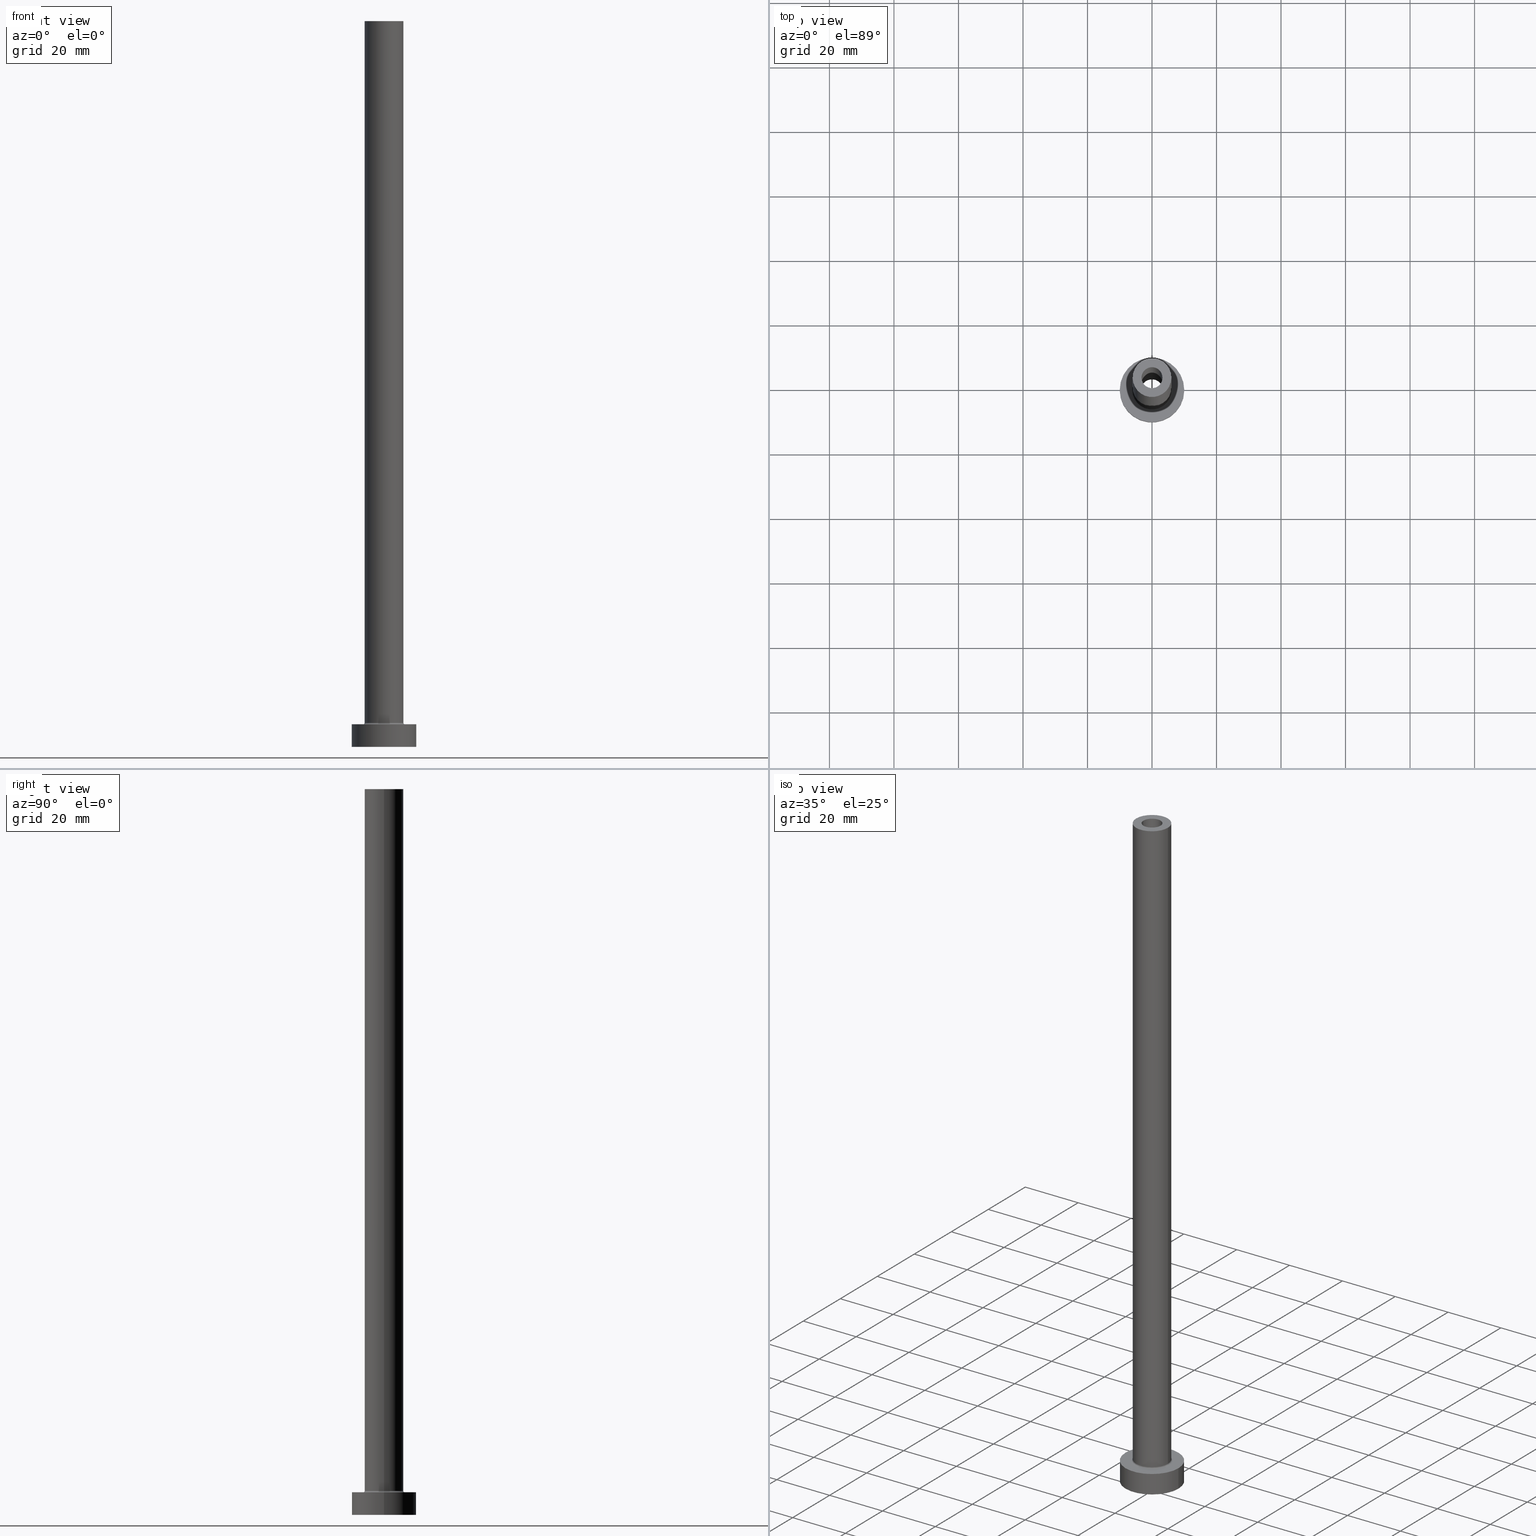
[diagram: canonical four-view strip — front | top / right | iso, engineering-drawing reading convention]
A machine part, canonical four-view strip (front | top / right | iso — engineering-drawing reading convention). The complete STEP part file that produces these views, byte-faithful:
ISO-10303-21;
HEADER;
FILE_DESCRIPTION (( 'STEP AP203' ),
    '1' );
FILE_NAME ('264a.STEP',
    '2023-02-13T13:31:31',
    ( '' ),
    ( '' ),
    'SwSTEP 2.0',
    'SolidWorks 2019',
    '' );
FILE_SCHEMA (( 'CONFIG_CONTROL_DESIGN' ));
ENDSEC;

DATA;
#1 = EDGE_CURVE ( 'NONE', #319, #363, #390, .T. ) ;
#2 =( NAMED_UNIT ( * ) SI_UNIT ( $, .STERADIAN. ) SOLID_ANGLE_UNIT ( ) );
#3 = CALENDAR_DATE ( 2023, 13, 2 ) ;
#4 = CIRCLE ( 'NONE', #278, 3.399999999999999911 ) ;
#5 = CC_DESIGN_APPROVAL ( #146, ( #234 ) ) ;
#6 = CC_DESIGN_PERSON_AND_ORGANIZATION_ASSIGNMENT ( #111, #214, ( #53 ) ) ;
#7 = EDGE_CURVE ( 'NONE', #319, #382, #361, .T. ) ;
#8 = PERSON_AND_ORGANIZATION_ROLE ( 'creator' ) ;
#9 = EDGE_LOOP ( 'NONE', ( #283, #49, #178, #432 ) ) ;
#10 = EDGE_CURVE ( 'NONE', #153, #221, #263, .T. ) ;
#11 = ORIENTED_EDGE ( 'NONE', *, *, #297, .F. ) ;
#12 = DIRECTION ( 'NONE',  ( 0.000000000000000000, 0.000000000000000000, -1.000000000000000000 ) ) ;
#13 = EDGE_LOOP ( 'NONE', ( #429, #185, #48, #92 ) ) ;
#14 = APPROVAL_PERSON_ORGANIZATION ( #251, #402, #42 ) ;
#15 = ORIENTED_EDGE ( 'NONE', *, *, #82, .T. ) ;
#16 = FACE_OUTER_BOUND ( 'NONE', #85, .T. ) ;
#17 = ADVANCED_FACE ( 'NONE', ( #405, #337 ), #28, .T. ) ;
#18 = CYLINDRICAL_SURFACE ( 'NONE', #355, 6.000000000000000888 ) ;
#19 = ORIENTED_EDGE ( 'NONE', *, *, #23, .F. ) ;
#20 = FACE_OUTER_BOUND ( 'NONE', #455, .T. ) ;
#21 = CARTESIAN_POINT ( 'NONE',  ( 0.000000000000000000, 0.000000000000000000, 225.0000000000000000 ) ) ;
#22 = EDGE_LOOP ( 'NONE', ( #244, #396 ) ) ;
#23 = EDGE_CURVE ( 'NONE', #328, #188, #286, .T. ) ;
#24 = DIRECTION ( 'NONE',  ( 1.000000000000000000, 0.000000000000000000, 0.000000000000000000 ) ) ;
#25 = PRODUCT_RELATED_PRODUCT_CATEGORY ( 'detail', '', ( #368 ) ) ;
#26 = FACE_OUTER_BOUND ( 'NONE', #13, .T. ) ;
#27 = CARTESIAN_POINT ( 'NONE',  ( 0.000000000000000000, 0.000000000000000000, 225.0000000000000000 ) ) ;
#28 = PLANE ( 'NONE',  #370 ) ;
#29 = AXIS2_PLACEMENT_3D ( 'NONE', #338, #102, #70 ) ;
#30 = CC_DESIGN_APPROVAL ( #136, ( #53 ) ) ;
#31 = CARTESIAN_POINT ( 'NONE',  ( -6.000000000000000888, 0.000000000000000000, 225.0000000000000000 ) ) ;
#32 = DIRECTION ( 'NONE',  ( 0.000000000000000000, 0.000000000000000000, 1.000000000000000000 ) ) ;
#33 = DIRECTION ( 'NONE',  ( -0.000000000000000000, -0.000000000000000000, -1.000000000000000000 ) ) ;
#34 = CARTESIAN_POINT ( 'NONE',  ( 0.000000000000000000, 0.000000000000000000, 7.500000000000007105 ) ) ;
#35 = DIRECTION ( 'NONE',  ( -0.000000000000000000, -0.000000000000000000, -1.000000000000000000 ) ) ;
#36 = CIRCLE ( 'NONE', #318, 6.500000000000000888 ) ;
#37 = DIRECTION ( 'NONE',  ( -0.000000000000000000, -0.000000000000000000, -1.000000000000000000 ) ) ;
#38 = APPROVAL_ROLE ( '' ) ;
#39 = DIRECTION ( 'NONE',  ( -0.000000000000000000, -0.000000000000000000, -1.000000000000000000 ) ) ;
#40 = APPROVAL_DATE_TIME ( #187, #402 ) ;
#41 = ADVANCED_FACE ( 'NONE', ( #26 ), #350, .T. ) ;
#42 = APPROVAL_ROLE ( '' ) ;
#43 = AXIS2_PLACEMENT_3D ( 'NONE', #435, #196, #160 ) ;
#44 = ORIENTED_EDGE ( 'NONE', *, *, #375, .F. ) ;
#45 = EDGE_CURVE ( 'NONE', #83, #90, #142, .T. ) ;
#46 = ORIENTED_EDGE ( 'NONE', *, *, #375, .T. ) ;
#47 = PERSON_AND_ORGANIZATION ( #446, #303 ) ;
#48 = ORIENTED_EDGE ( 'NONE', *, *, #226, .T. ) ;
#49 = ORIENTED_EDGE ( 'NONE', *, *, #297, .T. ) ;
#50 = ORIENTED_EDGE ( 'NONE', *, *, #10, .F. ) ;
#51 = VERTEX_POINT ( 'NONE', #213 ) ;
#52 = TOROIDAL_SURFACE ( 'NONE', #207, 6.500000000000000888, 0.5000000000000000000 ) ;
#53 = SECURITY_CLASSIFICATION ( '', '', #250 ) ;
#54 = ORIENTED_EDGE ( 'NONE', *, *, #365, .F. ) ;
#55 = CARTESIAN_POINT ( 'NONE',  ( 10.00000000000000000, 1.224646799147353256E-15, 0.000000000000000000 ) ) ;
#56 = EDGE_LOOP ( 'NONE', ( #293, #313 ) ) ;
#57 = CYLINDRICAL_SURFACE ( 'NONE', #94, 3.399999999999999911 ) ;
#58 = CARTESIAN_POINT ( 'NONE',  ( 0.000000000000000000, 0.000000000000000000, 189.6166522241370274 ) ) ;
#59 = AXIS2_PLACEMENT_3D ( 'NONE', #34, #272, #351 ) ;
#60 = CIRCLE ( 'NONE', #308, 6.500000000000000888 ) ;
#61 = ADVANCED_FACE ( 'NONE', ( #395 ), #403, .F. ) ;
#62 = ORIENTED_EDGE ( 'NONE', *, *, #349, .T. ) ;
#63 = DIRECTION ( 'NONE',  ( 1.000000000000000000, 0.000000000000000000, 0.000000000000000000 ) ) ;
#64 = DIRECTION ( 'NONE',  ( 0.000000000000000000, 0.000000000000000000, 1.000000000000000000 ) ) ;
#65 = CYLINDRICAL_SURFACE ( 'NONE', #75, 10.00000000000000000 ) ;
#66 = CARTESIAN_POINT ( 'NONE',  ( 3.399999999999999911, 4.163799117101000559E-16, 189.6166522241370274 ) ) ;
#67 = ORIENTED_EDGE ( 'NONE', *, *, #82, .F. ) ;
#68 = DIRECTION ( 'NONE',  ( -0.000000000000000000, -0.000000000000000000, -1.000000000000000000 ) ) ;
#69 = AXIS2_PLACEMENT_3D ( 'NONE', #459, #386, #107 ) ;
#70 = DIRECTION ( 'NONE',  ( 1.000000000000000000, 0.000000000000000000, 0.000000000000000000 ) ) ;
#71 = LINE ( 'NONE', #31, #441 ) ;
#72 = VERTEX_POINT ( 'NONE', #86 ) ;
#73 = ADVANCED_FACE ( 'NONE', ( #434 ), #18, .T. ) ;
#74 = ADVANCED_BREP_SHAPE_REPRESENTATION ( '264a', ( #129, #228 ), #422 ) ;
#75 = AXIS2_PLACEMENT_3D ( 'NONE', #237, #135, #198 ) ;
#76 = ADVANCED_FACE ( 'NONE', ( #197, #128 ), #121, .F. ) ;
#77 = FACE_OUTER_BOUND ( 'NONE', #165, .T. ) ;
#78 = APPLICATION_PROTOCOL_DEFINITION ( 'international standard', 'config_control_design', 1994, #398 ) ;
#79 =( NAMED_UNIT ( * ) PLANE_ANGLE_UNIT ( ) SI_UNIT ( $, .RADIAN. ) );
#80 = CALENDAR_DATE ( 2023, 13, 2 ) ;
#81 = COORDINATED_UNIVERSAL_TIME_OFFSET ( 1, 0, .AHEAD. ) ;
#82 = EDGE_CURVE ( 'NONE', #90, #176, #417, .T. ) ;
#83 = VERTEX_POINT ( 'NONE', #190 ) ;
#84 = CARTESIAN_POINT ( 'NONE',  ( 0.000000000000000000, 0.000000000000000000, 0.000000000000000000 ) ) ;
#85 = EDGE_LOOP ( 'NONE', ( #307, #156, #450, #271 ) ) ;
#86 = CARTESIAN_POINT ( 'NONE',  ( -3.250000000000000444, 0.000000000000000000, 225.0000000000000000 ) ) ;
#87 = CARTESIAN_POINT ( 'NONE',  ( -3.399999999999999911, 0.000000000000000000, 189.6166522241370274 ) ) ;
#88 = CIRCLE ( 'NONE', #431, 3.399999999999999911 ) ;
#89 = DIRECTION ( 'NONE',  ( 0.000000000000000000, 0.000000000000000000, -1.000000000000000000 ) ) ;
#90 = VERTEX_POINT ( 'NONE', #404 ) ;
#91 = DIRECTION ( 'NONE',  ( 0.000000000000000000, 0.000000000000000000, 1.000000000000000000 ) ) ;
#92 = ORIENTED_EDGE ( 'NONE', *, *, #45, .F. ) ;
#93 = DIRECTION ( 'NONE',  ( 1.000000000000000000, 0.000000000000000000, -0.000000000000000000 ) ) ;
#94 = AXIS2_PLACEMENT_3D ( 'NONE', #259, #89, #260 ) ;
#95 = CARTESIAN_POINT ( 'NONE',  ( 6.500000000000000888, 0.000000000000000000, 7.500000000000007105 ) ) ;
#96 = EDGE_CURVE ( 'NONE', #120, #51, #233, .T. ) ;
#97 = CARTESIAN_POINT ( 'NONE',  ( 0.000000000000000000, 0.000000000000000000, 0.000000000000000000 ) ) ;
#98 = DIRECTION ( 'NONE',  ( -1.000000000000000000, 0.000000000000000000, 0.000000000000000000 ) ) ;
#99 = AXIS2_PLACEMENT_3D ( 'NONE', #245, #200, #377 ) ;
#100 = CARTESIAN_POINT ( 'NONE',  ( -6.000000000000000888, 0.000000000000000000, 7.500000000000007105 ) ) ;
#101 = ORIENTED_EDGE ( 'NONE', *, *, #191, .T. ) ;
#102 = DIRECTION ( 'NONE',  ( 0.000000000000000000, 0.000000000000000000, 1.000000000000000000 ) ) ;
#103 = DIRECTION ( 'NONE',  ( -1.000000000000000000, 0.000000000000000000, 0.000000000000000000 ) ) ;
#104 = CYLINDRICAL_SURFACE ( 'NONE', #399, 6.000000000000000888 ) ;
#105 = PERSON_AND_ORGANIZATION_ROLE ( 'design_owner' ) ;
#106 = AXIS2_PLACEMENT_3D ( 'NONE', #364, #288, #194 ) ;
#107 = DIRECTION ( 'NONE',  ( 1.000000000000000000, 0.000000000000000000, -0.000000000000000000 ) ) ;
#108 = EDGE_CURVE ( 'NONE', #72, #425, #436, .T. ) ;
#109 = DIRECTION ( 'NONE',  ( 1.000000000000000000, 0.000000000000000000, -0.000000000000000000 ) ) ;
#110 = LOCAL_TIME ( 14, 31, 31.00000000000000000, #81 ) ;
#111 = PERSON_AND_ORGANIZATION ( #446, #303 ) ;
#112 = EDGE_LOOP ( 'NONE', ( #449, #230 ) ) ;
#113 = MECHANICAL_CONTEXT ( 'NONE', #269, 'mechanical' ) ;
#114 = PERSON_AND_ORGANIZATION ( #446, #303 ) ;
#115 = AXIS2_PLACEMENT_3D ( 'NONE', #157, #401, #325 ) ;
#116 = EDGE_LOOP ( 'NONE', ( #195, #101 ) ) ;
#117 = CARTESIAN_POINT ( 'NONE',  ( 6.500000000000000888, 0.000000000000000000, 7.000000000000002665 ) ) ;
#118 = ORIENTED_EDGE ( 'NONE', *, *, #23, .T. ) ;
#119 = EDGE_LOOP ( 'NONE', ( #357, #193 ) ) ;
#120 = VERTEX_POINT ( 'NONE', #326 ) ;
#121 = PLANE ( 'NONE',  #43 ) ;
#122 = EDGE_CURVE ( 'NONE', #410, #176, #227, .T. ) ;
#123 = CARTESIAN_POINT ( 'NONE',  ( 3.399999999999999911, 4.163799117101000559E-16, 180.0000000000000000 ) ) ;
#124 = TOROIDAL_SURFACE ( 'NONE', #99, 6.500000000000000888, 0.5000000000000000000 ) ;
#125 = DIRECTION ( 'NONE',  ( -0.000000000000000000, -0.000000000000000000, -1.000000000000000000 ) ) ;
#126 = DIRECTION ( 'NONE',  ( 0.000000000000000000, 0.000000000000000000, -1.000000000000000000 ) ) ;
#127 = EDGE_LOOP ( 'NONE', ( #461, #285, #281, #458 ) ) ;
#128 = FACE_OUTER_BOUND ( 'NONE', #291, .T. ) ;
#129 = MANIFOLD_SOLID_BREP ( 'Odebrat vysunut�m4', #137 ) ;
#130 = CARTESIAN_POINT ( 'NONE',  ( 0.000000000000000000, 0.000000000000000000, 7.500000000000007105 ) ) ;
#131 = VECTOR ( 'NONE', #35, 1000.000000000000000 ) ;
#132 = APPROVAL_PERSON_ORGANIZATION ( #114, #146, #38 ) ;
#133 = CARTESIAN_POINT ( 'NONE',  ( 0.000000000000000000, 0.000000000000000000, 225.0000000000000000 ) ) ;
#134 = FACE_OUTER_BOUND ( 'NONE', #127, .T. ) ;
#135 = DIRECTION ( 'NONE',  ( -0.000000000000000000, -0.000000000000000000, -1.000000000000000000 ) ) ;
#136 = APPROVAL ( #387, 'NEUR�EN�' ) ;
#137 = CLOSED_SHELL ( 'NONE', ( #353, #159, #235, #73, #41, #279, #17, #76, #430, #171, #173, #61, #414, #393 ) ) ;
#138 = AXIS2_PLACEMENT_3D ( 'NONE', #300, #341, #381 ) ;
#139 = DIRECTION ( 'NONE',  ( 1.000000000000000000, 0.000000000000000000, 0.000000000000000000 ) ) ;
#140 = ORIENTED_EDGE ( 'NONE', *, *, #299, .F. ) ;
#141 = FACE_OUTER_BOUND ( 'NONE', #119, .T. ) ;
#142 = LINE ( 'NONE', #242, #131 ) ;
#143 = CARTESIAN_POINT ( 'NONE',  ( 0.000000000000000000, 0.000000000000000000, 225.0000000000000000 ) ) ;
#144 = APPROVAL_STATUS ( 'not_yet_approved' ) ;
#145 = ORIENTED_EDGE ( 'NONE', *, *, #226, .F. ) ;
#146 = APPROVAL ( #144, 'NEUR�EN�' ) ;
#147 = AXIS2_PLACEMENT_3D ( 'NONE', #130, #409, #166 ) ;
#148 = LINE ( 'NONE', #454, #225 ) ;
#149 = APPROVAL_PERSON_ORGANIZATION ( #317, #136, #184 ) ;
#150 = PERSON_AND_ORGANIZATION ( #446, #303 ) ;
#151 = DATE_AND_TIME ( #273, #110 ) ;
#152 = PERSON_AND_ORGANIZATION ( #446, #303 ) ;
#153 = VERTEX_POINT ( 'NONE', #123 ) ;
#154 = CARTESIAN_POINT ( 'NONE',  ( -6.000000000000000888, 0.000000000000000000, 225.0000000000000000 ) ) ;
#155 = CIRCLE ( 'NONE', #147, 6.000000000000000888 ) ;
#156 = ORIENTED_EDGE ( 'NONE', *, *, #10, .T. ) ;
#157 = CARTESIAN_POINT ( 'NONE',  ( 0.000000000000000000, 0.000000000000000000, 225.0000000000000000 ) ) ;
#158 = VERTEX_POINT ( 'NONE', #366 ) ;
#159 = ADVANCED_FACE ( 'NONE', ( #16 ), #57, .F. ) ;
#160 = DIRECTION ( 'NONE',  ( 1.000000000000000000, 0.000000000000000000, -0.000000000000000000 ) ) ;
#161 = EDGE_CURVE ( 'NONE', #72, #120, #327, .T. ) ;
#162 = PLANE ( 'NONE',  #241 ) ;
#163 = VECTOR ( 'NONE', #12, 1000.000000000000000 ) ;
#164 = FACE_OUTER_BOUND ( 'NONE', #183, .T. ) ;
#165 = EDGE_LOOP ( 'NONE', ( #392, #140, #383, #359 ) ) ;
#166 = DIRECTION ( 'NONE',  ( 1.000000000000000000, 0.000000000000000000, 0.000000000000000000 ) ) ;
#167 = DIRECTION ( 'NONE',  ( 0.000000000000000000, 0.000000000000000000, -1.000000000000000000 ) ) ;
#168 = AXIS2_PLACEMENT_3D ( 'NONE', #177, #205, #311 ) ;
#169 = CARTESIAN_POINT ( 'NONE',  ( 0.000000000000000000, 0.000000000000000000, 225.0000000000000000 ) ) ;
#170 = CC_DESIGN_DATE_AND_TIME_ASSIGNMENT ( #210, #460, ( #234 ) ) ;
#171 = ADVANCED_FACE ( 'NONE', ( #372, #20 ), #162, .T. ) ;
#172 = CARTESIAN_POINT ( 'NONE',  ( 6.000000000000000888, 7.347880794884120722E-16, 225.0000000000000000 ) ) ;
#173 = ADVANCED_FACE ( 'NONE', ( #164 ), #52, .F. ) ;
#174 = FACE_OUTER_BOUND ( 'NONE', #247, .T. ) ;
#175 = CIRCLE ( 'NONE', #189, 10.00000000000000000 ) ;
#176 = VERTEX_POINT ( 'NONE', #55 ) ;
#177 = CARTESIAN_POINT ( 'NONE',  ( 0.000000000000000000, 0.000000000000000000, 0.000000000000000000 ) ) ;
#178 = ORIENTED_EDGE ( 'NONE', *, *, #96, .F. ) ;
#179 = FACE_BOUND ( 'NONE', #116, .T. ) ;
#180 = DATE_TIME_ROLE ( 'classification_date' ) ;
#181 = AXIS2_PLACEMENT_3D ( 'NONE', #267, #416, #380 ) ;
#182 = CARTESIAN_POINT ( 'NONE',  ( 0.000000000000000000, 0.000000000000000000, 7.000000000000000000 ) ) ;
#183 = EDGE_LOOP ( 'NONE', ( #255, #44, #208, #54 ) ) ;
#184 = APPROVAL_ROLE ( '' ) ;
#185 = ORIENTED_EDGE ( 'NONE', *, *, #122, .T. ) ;
#186 = EDGE_CURVE ( 'NONE', #192, #158, #295, .T. ) ;
#187 = DATE_AND_TIME ( #218, #323 ) ;
#188 = VERTEX_POINT ( 'NONE', #154 ) ;
#189 = AXIS2_PLACEMENT_3D ( 'NONE', #332, #243, #239 ) ;
#190 = CARTESIAN_POINT ( 'NONE',  ( -10.00000000000000000, 0.000000000000000000, 7.000000000000000000 ) ) ;
#191 = EDGE_CURVE ( 'NONE', #51, #120, #371, .T. ) ;
#192 = VERTEX_POINT ( 'NONE', #433 ) ;
#193 = ORIENTED_EDGE ( 'NONE', *, *, #349, .F. ) ;
#194 = DIRECTION ( 'NONE',  ( 1.000000000000000000, 0.000000000000000000, 0.000000000000000000 ) ) ;
#195 = ORIENTED_EDGE ( 'NONE', *, *, #96, .T. ) ;
#196 = DIRECTION ( 'NONE',  ( 0.000000000000000000, 0.000000000000000000, 1.000000000000000000 ) ) ;
#197 = FACE_BOUND ( 'NONE', #112, .T. ) ;
#198 = DIRECTION ( 'NONE',  ( -1.000000000000000000, 0.000000000000000000, 0.000000000000000000 ) ) ;
#199 = CARTESIAN_POINT ( 'NONE',  ( 6.000000000000000888, 7.347880794884120722E-16, 7.500000000000007105 ) ) ;
#200 = DIRECTION ( 'NONE',  ( 0.000000000000000000, 0.000000000000000000, 1.000000000000000000 ) ) ;
#201 = AXIS2_PLACEMENT_3D ( 'NONE', #58, #292, #232 ) ;
#202 = LOCAL_TIME ( 14, 31, 31.00000000000000000, #356 ) ;
#203 = LINE ( 'NONE', #443, #385 ) ;
#204 = DIRECTION ( 'NONE',  ( 0.000000000000000000, 0.000000000000000000, -1.000000000000000000 ) ) ;
#205 = DIRECTION ( 'NONE',  ( -0.000000000000000000, -0.000000000000000000, -1.000000000000000000 ) ) ;
#206 = AXIS2_PLACEMENT_3D ( 'NONE', #95, #236, #373 ) ;
#207 = AXIS2_PLACEMENT_3D ( 'NONE', #439, #289, #63 ) ;
#208 = ORIENTED_EDGE ( 'NONE', *, *, #379, .T. ) ;
#209 = CARTESIAN_POINT ( 'NONE',  ( 3.250000000000000444, 3.980102097228898231E-16, 225.0000000000000000 ) ) ;
#210 = DATE_AND_TIME ( #80, #340 ) ;
#211 = ORIENTED_EDGE ( 'NONE', *, *, #45, .T. ) ;
#212 = DIRECTION ( 'NONE',  ( 0.000000000000000000, 0.000000000000000000, 1.000000000000000000 ) ) ;
#213 = CARTESIAN_POINT ( 'NONE',  ( 3.250000000000000444, 3.980102097228898231E-16, 180.0000000000000000 ) ) ;
#214 = PERSON_AND_ORGANIZATION_ROLE ( 'classification_officer' ) ;
#215 = APPLICATION_PROTOCOL_DEFINITION ( 'international standard', 'config_control_design', 1994, #269 ) ;
#216 = CC_DESIGN_DATE_AND_TIME_ASSIGNMENT ( #280, #180, ( #53 ) ) ;
#217 = CIRCLE ( 'NONE', #138, 3.250000000000000444 ) ;
#218 = CALENDAR_DATE ( 2023, 13, 2 ) ;
#219 = CALENDAR_DATE ( 2023, 13, 2 ) ;
#220 = VERTEX_POINT ( 'NONE', #117 ) ;
#221 = VERTEX_POINT ( 'NONE', #254 ) ;
#222 = DIRECTION ( 'NONE',  ( -0.000000000000000000, -0.000000000000000000, -1.000000000000000000 ) ) ;
#223 = AXIS2_PLACEMENT_3D ( 'NONE', #428, #324, #418 ) ;
#224 = ORIENTED_EDGE ( 'NONE', *, *, #444, .T. ) ;
#225 = VECTOR ( 'NONE', #37, 1000.000000000000000 ) ;
#226 = EDGE_CURVE ( 'NONE', #176, #90, #268, .T. ) ;
#227 = LINE ( 'NONE', #257, #329 ) ;
#228 = AXIS2_PLACEMENT_3D ( 'NONE', #84, #354, #284 ) ;
#229 = CARTESIAN_POINT ( 'NONE',  ( 0.000000000000000000, 0.000000000000000000, 225.0000000000000000 ) ) ;
#230 = ORIENTED_EDGE ( 'NONE', *, *, #262, .F. ) ;
#231 = CARTESIAN_POINT ( 'NONE',  ( 0.000000000000000000, 0.000000000000000000, 0.000000000000000000 ) ) ;
#232 = DIRECTION ( 'NONE',  ( -1.000000000000000000, 0.000000000000000000, 0.000000000000000000 ) ) ;
#233 = CIRCLE ( 'NONE', #407, 3.250000000000000444 ) ;
#234 = PRODUCT_DEFINITION ( 'NEZN�M�', '', #362, #314 ) ;
#235 = ADVANCED_FACE ( 'NONE', ( #134 ), #124, .F. ) ;
#236 = DIRECTION ( 'NONE',  ( 0.000000000000000000, -1.000000000000000000, 0.000000000000000000 ) ) ;
#237 = CARTESIAN_POINT ( 'NONE',  ( 0.000000000000000000, 0.000000000000000000, 7.000000000000000000 ) ) ;
#238 = EDGE_CURVE ( 'NONE', #425, #72, #217, .T. ) ;
#239 = DIRECTION ( 'NONE',  ( 1.000000000000000000, 0.000000000000000000, 0.000000000000000000 ) ) ;
#240 = CC_DESIGN_PERSON_AND_ORGANIZATION_ASSIGNMENT ( #150, #8, ( #362 ) ) ;
#241 = AXIS2_PLACEMENT_3D ( 'NONE', #21, #397, #93 ) ;
#242 = CARTESIAN_POINT ( 'NONE',  ( -10.00000000000000000, 0.000000000000000000, 7.000000000000000000 ) ) ;
#243 = DIRECTION ( 'NONE',  ( 0.000000000000000000, 0.000000000000000000, 1.000000000000000000 ) ) ;
#244 = ORIENTED_EDGE ( 'NONE', *, *, #335, .T. ) ;
#245 = CARTESIAN_POINT ( 'NONE',  ( 0.000000000000000000, 0.000000000000000000, 7.500000000000007105 ) ) ;
#246 =( LENGTH_UNIT ( ) NAMED_UNIT ( * ) SI_UNIT ( .MILLI., .METRE. ) );
#247 = EDGE_LOOP ( 'NONE', ( #274, #256, #211, #15 ) ) ;
#248 = AXIS2_PLACEMENT_3D ( 'NONE', #27, #167, #411 ) ;
#249 = LOCAL_TIME ( 14, 31, 31.00000000000000000, #384 ) ;
#250 = SECURITY_CLASSIFICATION_LEVEL ( 'unclassified' ) ;
#251 = PERSON_AND_ORGANIZATION ( #446, #303 ) ;
#252 = CIRCLE ( 'NONE', #181, 10.00000000000000000 ) ;
#253 = EDGE_LOOP ( 'NONE', ( #11, #423, #258, #347 ) ) ;
#254 = CARTESIAN_POINT ( 'NONE',  ( 3.399999999999999911, 4.163799117101000559E-16, 0.000000000000000000 ) ) ;
#255 = ORIENTED_EDGE ( 'NONE', *, *, #1, .F. ) ;
#256 = ORIENTED_EDGE ( 'NONE', *, *, #336, .F. ) ;
#257 = CARTESIAN_POINT ( 'NONE',  ( 10.00000000000000000, 1.224646799147353256E-15, 7.000000000000000000 ) ) ;
#258 = ORIENTED_EDGE ( 'NONE', *, *, #161, .T. ) ;
#259 = CARTESIAN_POINT ( 'NONE',  ( 0.000000000000000000, 0.000000000000000000, 189.6166522241370274 ) ) ;
#260 = DIRECTION ( 'NONE',  ( -1.000000000000000000, 0.000000000000000000, 0.000000000000000000 ) ) ;
#261 = DIRECTION ( 'NONE',  ( 0.000000000000000000, 0.000000000000000000, 1.000000000000000000 ) ) ;
#262 = EDGE_CURVE ( 'NONE', #221, #158, #391, .T. ) ;
#263 = LINE ( 'NONE', #66, #406 ) ;
#264 = DIRECTION ( 'NONE',  ( 0.000000000000000000, 0.000000000000000000, 1.000000000000000000 ) ) ;
#265 = CIRCLE ( 'NONE', #168, 3.399999999999999911 ) ;
#266 = CARTESIAN_POINT ( 'NONE',  ( 0.000000000000000000, 0.000000000000000000, 180.0000000000000000 ) ) ;
#267 = CARTESIAN_POINT ( 'NONE',  ( 0.000000000000000000, 0.000000000000000000, 7.000000000000000000 ) ) ;
#268 = CIRCLE ( 'NONE', #29, 10.00000000000000000 ) ;
#269 = APPLICATION_CONTEXT ( 'configuration controlled 3d designs of mechanical parts and assemblies' ) ;
#270 = CARTESIAN_POINT ( 'NONE',  ( 0.000000000000000000, 0.000000000000000000, 7.000000000000000000 ) ) ;
#271 = ORIENTED_EDGE ( 'NONE', *, *, #186, .F. ) ;
#272 = DIRECTION ( 'NONE',  ( 0.000000000000000000, 0.000000000000000000, 1.000000000000000000 ) ) ;
#273 = CALENDAR_DATE ( 2023, 13, 2 ) ;
#274 = ORIENTED_EDGE ( 'NONE', *, *, #122, .F. ) ;
#275 = DIRECTION ( 'NONE',  ( 1.000000000000000000, 0.000000000000000000, 0.000000000000000000 ) ) ;
#276 = APPROVAL_STATUS ( 'not_yet_approved' ) ;
#277 = AXIS2_PLACEMENT_3D ( 'NONE', #97, #374, #305 ) ;
#278 = AXIS2_PLACEMENT_3D ( 'NONE', #345, #212, #275 ) ;
#279 = ADVANCED_FACE ( 'NONE', ( #174 ), #65, .T. ) ;
#280 = DATE_AND_TIME ( #219, #202 ) ;
#281 = ORIENTED_EDGE ( 'NONE', *, *, #335, .F. ) ;
#282 = APPROVAL_DATE_TIME ( #389, #146 ) ;
#283 = ORIENTED_EDGE ( 'NONE', *, *, #108, .T. ) ;
#284 = DIRECTION ( 'NONE',  ( 1.000000000000000000, 0.000000000000000000, 0.000000000000000000 ) ) ;
#285 = ORIENTED_EDGE ( 'NONE', *, *, #1, .T. ) ;
#286 = CIRCLE ( 'NONE', #287, 6.000000000000000888 ) ;
#287 = AXIS2_PLACEMENT_3D ( 'NONE', #376, #64, #333 ) ;
#288 = DIRECTION ( 'NONE',  ( 0.000000000000000000, 0.000000000000000000, 1.000000000000000000 ) ) ;
#289 = DIRECTION ( 'NONE',  ( 0.000000000000000000, 0.000000000000000000, 1.000000000000000000 ) ) ;
#290 = ORIENTED_EDGE ( 'NONE', *, *, #299, .T. ) ;
#291 = EDGE_LOOP ( 'NONE', ( #67, #145 ) ) ;
#292 = DIRECTION ( 'NONE',  ( 0.000000000000000000, 0.000000000000000000, -1.000000000000000000 ) ) ;
#293 = ORIENTED_EDGE ( 'NONE', *, *, #108, .F. ) ;
#294 = VECTOR ( 'NONE', #298, 1000.000000000000000 ) ;
#295 = LINE ( 'NONE', #87, #163 ) ;
#296 = PRODUCT_DEFINITION_SHAPE ( 'NONE', 'NONE',  #234 ) ;
#297 = EDGE_CURVE ( 'NONE', #425, #51, #203, .T. ) ;
#298 = DIRECTION ( 'NONE',  ( 0.000000000000000000, 0.000000000000000000, -1.000000000000000000 ) ) ;
#299 = EDGE_CURVE ( 'NONE', #188, #328, #339, .T. ) ;
#300 = CARTESIAN_POINT ( 'NONE',  ( 0.000000000000000000, 0.000000000000000000, 225.0000000000000000 ) ) ;
#301 = EDGE_LOOP ( 'NONE', ( #50, #62, #453, #331 ) ) ;
#302 = DIRECTION ( 'NONE',  ( 1.000000000000000000, 0.000000000000000000, 0.000000000000000000 ) ) ;
#303 = ORGANIZATION ( 'NEUR�EN�', 'NEUR�EN�', '' ) ;
#304 = CYLINDRICAL_SURFACE ( 'NONE', #248, 3.250000000000000444 ) ;
#305 = DIRECTION ( 'NONE',  ( 1.000000000000000000, 0.000000000000000000, 0.000000000000000000 ) ) ;
#306 = DIRECTION ( 'NONE',  ( 0.000000000000000000, 0.000000000000000000, -1.000000000000000000 ) ) ;
#307 = ORIENTED_EDGE ( 'NONE', *, *, #447, .T. ) ;
#308 = AXIS2_PLACEMENT_3D ( 'NONE', #270, #68, #448 ) ;
#309 = PLANE ( 'NONE',  #69 ) ;
#310 = CC_DESIGN_PERSON_AND_ORGANIZATION_ASSIGNMENT ( #47, #105, ( #368 ) ) ;
#311 = DIRECTION ( 'NONE',  ( 1.000000000000000000, 0.000000000000000000, 0.000000000000000000 ) ) ;
#312 = PERSON_AND_ORGANIZATION_ROLE ( 'creator' ) ;
#313 = ORIENTED_EDGE ( 'NONE', *, *, #238, .F. ) ;
#314 = DESIGN_CONTEXT ( 'detailed design', #398, 'design' ) ;
#315 = EDGE_CURVE ( 'NONE', #410, #83, #252, .T. ) ;
#316 = DIRECTION ( 'NONE',  ( -1.000000000000000000, 0.000000000000000000, 0.000000000000000000 ) ) ;
#317 = PERSON_AND_ORGANIZATION ( #446, #303 ) ;
#318 = AXIS2_PLACEMENT_3D ( 'NONE', #440, #33, #139 ) ;
#319 = VERTEX_POINT ( 'NONE', #100 ) ;
#320 = SHAPE_DEFINITION_REPRESENTATION ( #296, #74 ) ;
#321 = CARTESIAN_POINT ( 'NONE',  ( 0.000000000000000000, 0.000000000000000000, 180.0000000000000000 ) ) ;
#322 = AXIS2_PLACEMENT_3D ( 'NONE', #415, #342, #103 ) ;
#323 = LOCAL_TIME ( 14, 31, 31.00000000000000000, #421 ) ;
#324 = DIRECTION ( 'NONE',  ( 1.224646799147353207E-16, 1.000000000000000000, -0.000000000000000000 ) ) ;
#325 = DIRECTION ( 'NONE',  ( 1.000000000000000000, 0.000000000000000000, 0.000000000000000000 ) ) ;
#326 = CARTESIAN_POINT ( 'NONE',  ( -3.250000000000000444, 0.000000000000000000, 180.0000000000000000 ) ) ;
#327 = LINE ( 'NONE', #330, #294 ) ;
#328 = VERTEX_POINT ( 'NONE', #172 ) ;
#329 = VECTOR ( 'NONE', #125, 1000.000000000000000 ) ;
#330 = CARTESIAN_POINT ( 'NONE',  ( -3.250000000000000444, 0.000000000000000000, 225.0000000000000000 ) ) ;
#331 = ORIENTED_EDGE ( 'NONE', *, *, #420, .T. ) ;
#332 = CARTESIAN_POINT ( 'NONE',  ( 0.000000000000000000, 0.000000000000000000, 7.000000000000000000 ) ) ;
#333 = DIRECTION ( 'NONE',  ( 1.000000000000000000, 0.000000000000000000, 0.000000000000000000 ) ) ;
#334 = FACE_OUTER_BOUND ( 'NONE', #253, .T. ) ;
#335 = EDGE_CURVE ( 'NONE', #220, #363, #60, .T. ) ;
#336 = EDGE_CURVE ( 'NONE', #83, #410, #175, .T. ) ;
#337 = FACE_OUTER_BOUND ( 'NONE', #456, .T. ) ;
#338 = CARTESIAN_POINT ( 'NONE',  ( 0.000000000000000000, 0.000000000000000000, 0.000000000000000000 ) ) ;
#339 = CIRCLE ( 'NONE', #452, 6.000000000000000888 ) ;
#340 = LOCAL_TIME ( 14, 31, 31.00000000000000000, #352 ) ;
#341 = DIRECTION ( 'NONE',  ( 0.000000000000000000, 0.000000000000000000, 1.000000000000000000 ) ) ;
#342 = DIRECTION ( 'NONE',  ( -0.000000000000000000, -0.000000000000000000, -1.000000000000000000 ) ) ;
#343 = CARTESIAN_POINT ( 'NONE',  ( -6.500000000000000888, 7.960204194457796463E-16, 7.000000000000002665 ) ) ;
#344 = EDGE_CURVE ( 'NONE', #188, #319, #71, .T. ) ;
#345 = CARTESIAN_POINT ( 'NONE',  ( 0.000000000000000000, 0.000000000000000000, 180.0000000000000000 ) ) ;
#346 = AXIS2_PLACEMENT_3D ( 'NONE', #169, #204, #98 ) ;
#347 = ORIENTED_EDGE ( 'NONE', *, *, #191, .F. ) ;
#348 = PERSON_AND_ORGANIZATION ( #446, #303 ) ;
#349 = EDGE_CURVE ( 'NONE', #153, #192, #88, .T. ) ;
#350 = CYLINDRICAL_SURFACE ( 'NONE', #322, 10.00000000000000000 ) ;
#351 = DIRECTION ( 'NONE',  ( 1.000000000000000000, 0.000000000000000000, 0.000000000000000000 ) ) ;
#352 = COORDINATED_UNIVERSAL_TIME_OFFSET ( 1, 0, .AHEAD. ) ;
#353 = ADVANCED_FACE ( 'NONE', ( #412 ), #451, .F. ) ;
#354 = DIRECTION ( 'NONE',  ( 0.000000000000000000, 0.000000000000000000, 1.000000000000000000 ) ) ;
#355 = AXIS2_PLACEMENT_3D ( 'NONE', #229, #222, #360 ) ;
#356 = COORDINATED_UNIVERSAL_TIME_OFFSET ( 1, 0, .AHEAD. ) ;
#357 = ORIENTED_EDGE ( 'NONE', *, *, #447, .F. ) ;
#358 = DIRECTION ( 'NONE',  ( 0.000000000000000000, 0.000000000000000000, 1.000000000000000000 ) ) ;
#359 = ORIENTED_EDGE ( 'NONE', *, *, #7, .T. ) ;
#360 = DIRECTION ( 'NONE',  ( -1.000000000000000000, 0.000000000000000000, 0.000000000000000000 ) ) ;
#361 = CIRCLE ( 'NONE', #59, 6.000000000000000888 ) ;
#362 = PRODUCT_DEFINITION_FORMATION_WITH_SPECIFIED_SOURCE ( 'LIBOVOLN�', '', #368, .NOT_KNOWN. ) ;
#363 = VERTEX_POINT ( 'NONE', #343 ) ;
#364 = CARTESIAN_POINT ( 'NONE',  ( 0.000000000000000000, 0.000000000000000000, 180.0000000000000000 ) ) ;
#365 = EDGE_CURVE ( 'NONE', #363, #220, #36, .T. ) ;
#366 = CARTESIAN_POINT ( 'NONE',  ( -3.399999999999999911, 0.000000000000000000, 0.000000000000000000 ) ) ;
#367 = ORIENTED_EDGE ( 'NONE', *, *, #344, .F. ) ;
#368 = PRODUCT ( '264a', '264a', '', ( #113 ) ) ;
#369 = DIRECTION ( 'NONE',  ( 1.000000000000000000, 0.000000000000000000, 0.000000000000000000 ) ) ;
#370 = AXIS2_PLACEMENT_3D ( 'NONE', #182, #358, #109 ) ;
#371 = CIRCLE ( 'NONE', #106, 3.250000000000000444 ) ;
#372 = FACE_BOUND ( 'NONE', #56, .T. ) ;
#373 = DIRECTION ( 'NONE',  ( 0.000000000000000000, 0.000000000000000000, -1.000000000000000000 ) ) ;
#374 = DIRECTION ( 'NONE',  ( -0.000000000000000000, -0.000000000000000000, -1.000000000000000000 ) ) ;
#375 = EDGE_CURVE ( 'NONE', #382, #319, #155, .T. ) ;
#376 = CARTESIAN_POINT ( 'NONE',  ( 0.000000000000000000, 0.000000000000000000, 225.0000000000000000 ) ) ;
#377 = DIRECTION ( 'NONE',  ( 1.000000000000000000, 0.000000000000000000, 0.000000000000000000 ) ) ;
#378 = AXIS2_PLACEMENT_3D ( 'NONE', #231, #261, #438 ) ;
#379 = EDGE_CURVE ( 'NONE', #382, #220, #408, .T. ) ;
#380 = DIRECTION ( 'NONE',  ( 1.000000000000000000, 0.000000000000000000, 0.000000000000000000 ) ) ;
#381 = DIRECTION ( 'NONE',  ( 1.000000000000000000, 0.000000000000000000, 0.000000000000000000 ) ) ;
#382 = VERTEX_POINT ( 'NONE', #199 ) ;
#383 = ORIENTED_EDGE ( 'NONE', *, *, #344, .T. ) ;
#384 = COORDINATED_UNIVERSAL_TIME_OFFSET ( 1, 0, .AHEAD. ) ;
#385 = VECTOR ( 'NONE', #306, 1000.000000000000000 ) ;
#386 = DIRECTION ( 'NONE',  ( 0.000000000000000000, 0.000000000000000000, 1.000000000000000000 ) ) ;
#387 = APPROVAL_STATUS ( 'not_yet_approved' ) ;
#388 = CC_DESIGN_PERSON_AND_ORGANIZATION_ASSIGNMENT ( #152, #312, ( #234 ) ) ;
#389 = DATE_AND_TIME ( #3, #249 ) ;
#390 = CIRCLE ( 'NONE', #223, 0.5000000000000004441 ) ;
#391 = CIRCLE ( 'NONE', #277, 3.399999999999999911 ) ;
#392 = ORIENTED_EDGE ( 'NONE', *, *, #444, .F. ) ;
#393 = ADVANCED_FACE ( 'NONE', ( #334 ), #304, .F. ) ;
#394 = EDGE_LOOP ( 'NONE', ( #19, #224, #46, #367 ) ) ;
#395 = FACE_OUTER_BOUND ( 'NONE', #301, .T. ) ;
#396 = ORIENTED_EDGE ( 'NONE', *, *, #365, .T. ) ;
#397 = DIRECTION ( 'NONE',  ( 0.000000000000000000, 0.000000000000000000, 1.000000000000000000 ) ) ;
#398 = APPLICATION_CONTEXT ( 'configuration controlled 3d designs of mechanical parts and assemblies' ) ;
#399 = AXIS2_PLACEMENT_3D ( 'NONE', #143, #39, #316 ) ;
#400 = CC_DESIGN_SECURITY_CLASSIFICATION ( #53, ( #362 ) ) ;
#401 = DIRECTION ( 'NONE',  ( 0.000000000000000000, 0.000000000000000000, 1.000000000000000000 ) ) ;
#402 = APPROVAL ( #276, 'NEUR�EN�' ) ;
#403 = CYLINDRICAL_SURFACE ( 'NONE', #201, 3.399999999999999911 ) ;
#404 = CARTESIAN_POINT ( 'NONE',  ( -10.00000000000000000, 0.000000000000000000, 0.000000000000000000 ) ) ;
#405 = FACE_BOUND ( 'NONE', #22, .T. ) ;
#406 = VECTOR ( 'NONE', #126, 1000.000000000000000 ) ;
#407 = AXIS2_PLACEMENT_3D ( 'NONE', #321, #91, #369 ) ;
#408 = CIRCLE ( 'NONE', #206, 0.5000000000000004441 ) ;
#409 = DIRECTION ( 'NONE',  ( 0.000000000000000000, 0.000000000000000000, 1.000000000000000000 ) ) ;
#410 = VERTEX_POINT ( 'NONE', #445 ) ;
#411 = DIRECTION ( 'NONE',  ( -1.000000000000000000, 0.000000000000000000, 0.000000000000000000 ) ) ;
#412 = FACE_OUTER_BOUND ( 'NONE', #9, .T. ) ;
#413 = CC_DESIGN_PERSON_AND_ORGANIZATION_ASSIGNMENT ( #348, #424, ( #362 ) ) ;
#414 = ADVANCED_FACE ( 'NONE', ( #179, #141 ), #309, .F. ) ;
#415 = CARTESIAN_POINT ( 'NONE',  ( 0.000000000000000000, 0.000000000000000000, 7.000000000000000000 ) ) ;
#416 = DIRECTION ( 'NONE',  ( 0.000000000000000000, 0.000000000000000000, 1.000000000000000000 ) ) ;
#417 = CIRCLE ( 'NONE', #378, 10.00000000000000000 ) ;
#418 = DIRECTION ( 'NONE',  ( -1.000000000000000000, 1.224646799147351482E-16, 0.000000000000000000 ) ) ;
#419 = DIRECTION ( 'NONE',  ( -0.000000000000000000, -0.000000000000000000, -1.000000000000000000 ) ) ;
#420 = EDGE_CURVE ( 'NONE', #158, #221, #265, .T. ) ;
#421 = COORDINATED_UNIVERSAL_TIME_OFFSET ( 1, 0, .AHEAD. ) ;
#422 =( GEOMETRIC_REPRESENTATION_CONTEXT ( 3 ) GLOBAL_UNCERTAINTY_ASSIGNED_CONTEXT ( ( #457 ) ) GLOBAL_UNIT_ASSIGNED_CONTEXT ( ( #246, #79, #2 ) ) REPRESENTATION_CONTEXT ( 'NONE', 'WORKASPACE' ) );
#423 = ORIENTED_EDGE ( 'NONE', *, *, #238, .T. ) ;
#424 = PERSON_AND_ORGANIZATION_ROLE ( 'design_supplier' ) ;
#425 = VERTEX_POINT ( 'NONE', #209 ) ;
#426 = APPROVAL_DATE_TIME ( #151, #136 ) ;
#427 = ORIENTED_EDGE ( 'NONE', *, *, #336, .T. ) ;
#428 = CARTESIAN_POINT ( 'NONE',  ( -6.500000000000000888, 7.960204194457796463E-16, 7.500000000000007105 ) ) ;
#429 = ORIENTED_EDGE ( 'NONE', *, *, #315, .F. ) ;
#430 = ADVANCED_FACE ( 'NONE', ( #77 ), #104, .T. ) ;
#431 = AXIS2_PLACEMENT_3D ( 'NONE', #266, #264, #302 ) ;
#432 = ORIENTED_EDGE ( 'NONE', *, *, #161, .F. ) ;
#433 = CARTESIAN_POINT ( 'NONE',  ( -3.399999999999999911, 0.000000000000000000, 180.0000000000000000 ) ) ;
#434 = FACE_OUTER_BOUND ( 'NONE', #394, .T. ) ;
#435 = CARTESIAN_POINT ( 'NONE',  ( 0.000000000000000000, 0.000000000000000000, 0.000000000000000000 ) ) ;
#436 = CIRCLE ( 'NONE', #115, 3.250000000000000444 ) ;
#437 = ORIENTED_EDGE ( 'NONE', *, *, #315, .T. ) ;
#438 = DIRECTION ( 'NONE',  ( 1.000000000000000000, 0.000000000000000000, 0.000000000000000000 ) ) ;
#439 = CARTESIAN_POINT ( 'NONE',  ( 0.000000000000000000, 0.000000000000000000, 7.500000000000007105 ) ) ;
#440 = CARTESIAN_POINT ( 'NONE',  ( 0.000000000000000000, 0.000000000000000000, 7.000000000000000000 ) ) ;
#441 = VECTOR ( 'NONE', #419, 1000.000000000000000 ) ;
#442 = CC_DESIGN_APPROVAL ( #402, ( #362 ) ) ;
#443 = CARTESIAN_POINT ( 'NONE',  ( 3.250000000000000444, 3.980102097228898231E-16, 225.0000000000000000 ) ) ;
#444 = EDGE_CURVE ( 'NONE', #328, #382, #148, .T. ) ;
#445 = CARTESIAN_POINT ( 'NONE',  ( 10.00000000000000000, 1.224646799147353256E-15, 7.000000000000000000 ) ) ;
#446 = PERSON ( 'NEUR�EN�', 'NEUR�EN�', 'NEUR�EN�', ('NEUR�EN�'), ('NEUR�EN�'), ('NEUR�EN�') ) ;
#447 = EDGE_CURVE ( 'NONE', #192, #153, #4, .T. ) ;
#448 = DIRECTION ( 'NONE',  ( 1.000000000000000000, 0.000000000000000000, 0.000000000000000000 ) ) ;
#449 = ORIENTED_EDGE ( 'NONE', *, *, #420, .F. ) ;
#450 = ORIENTED_EDGE ( 'NONE', *, *, #262, .T. ) ;
#451 = CYLINDRICAL_SURFACE ( 'NONE', #346, 3.250000000000000444 ) ;
#452 = AXIS2_PLACEMENT_3D ( 'NONE', #133, #32, #24 ) ;
#453 = ORIENTED_EDGE ( 'NONE', *, *, #186, .T. ) ;
#454 = CARTESIAN_POINT ( 'NONE',  ( 6.000000000000000888, 7.347880794884120722E-16, 225.0000000000000000 ) ) ;
#455 = EDGE_LOOP ( 'NONE', ( #290, #118 ) ) ;
#456 = EDGE_LOOP ( 'NONE', ( #427, #437 ) ) ;
#457 = UNCERTAINTY_MEASURE_WITH_UNIT (LENGTH_MEASURE( 1.000000000000000082E-05 ), #246, 'distance_accuracy_value', 'NONE');
#458 = ORIENTED_EDGE ( 'NONE', *, *, #379, .F. ) ;
#459 = CARTESIAN_POINT ( 'NONE',  ( 0.000000000000000000, 0.000000000000000000, 180.0000000000000000 ) ) ;
#460 = DATE_TIME_ROLE ( 'creation_date' ) ;
#461 = ORIENTED_EDGE ( 'NONE', *, *, #7, .F. ) ;
ENDSEC;
END-ISO-10303-21;
